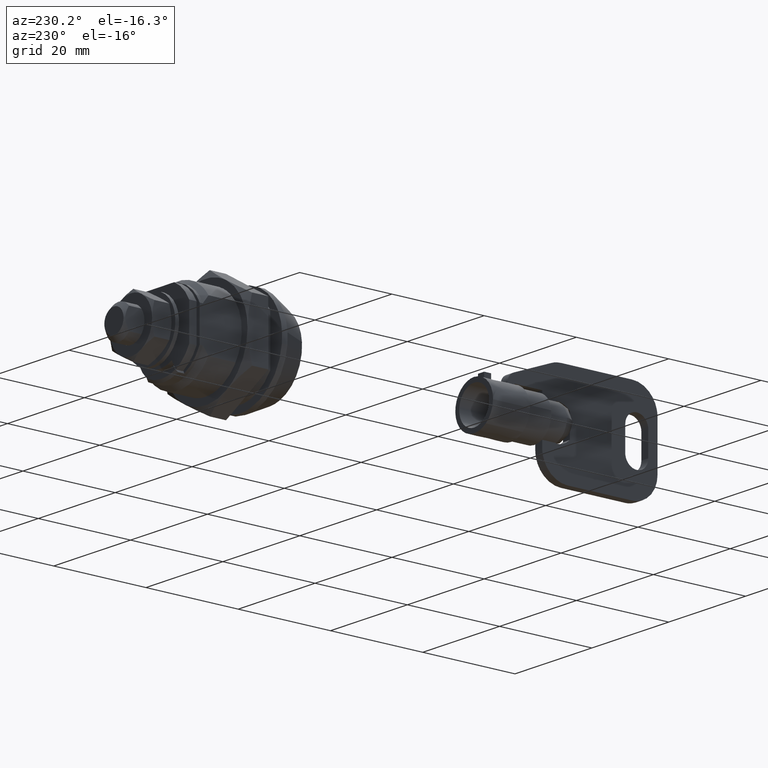
[diagram: clean part render]
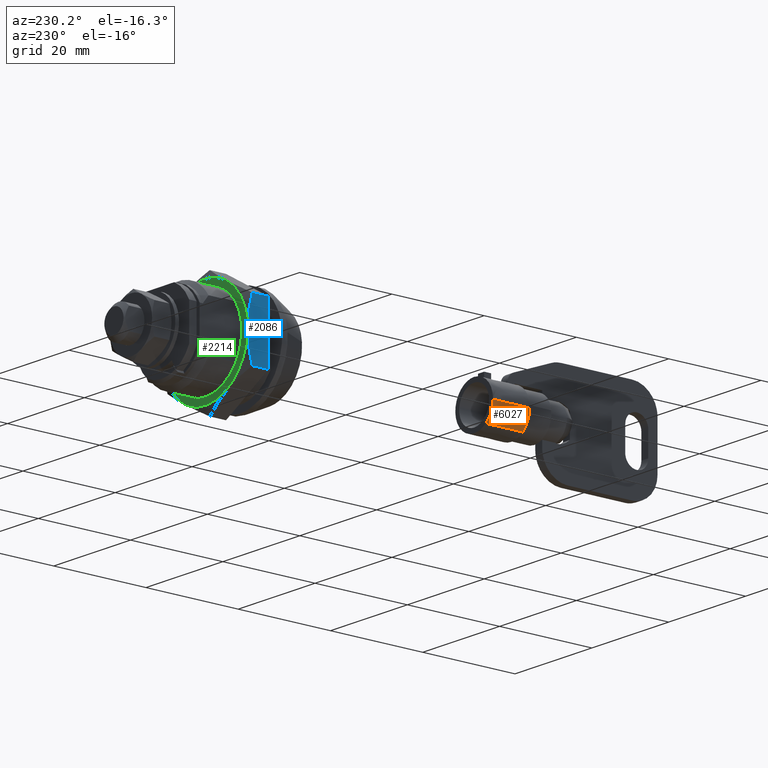
[diagram: same view with three faces highlighted in distinct colors, each labeled with its STEP entity id]
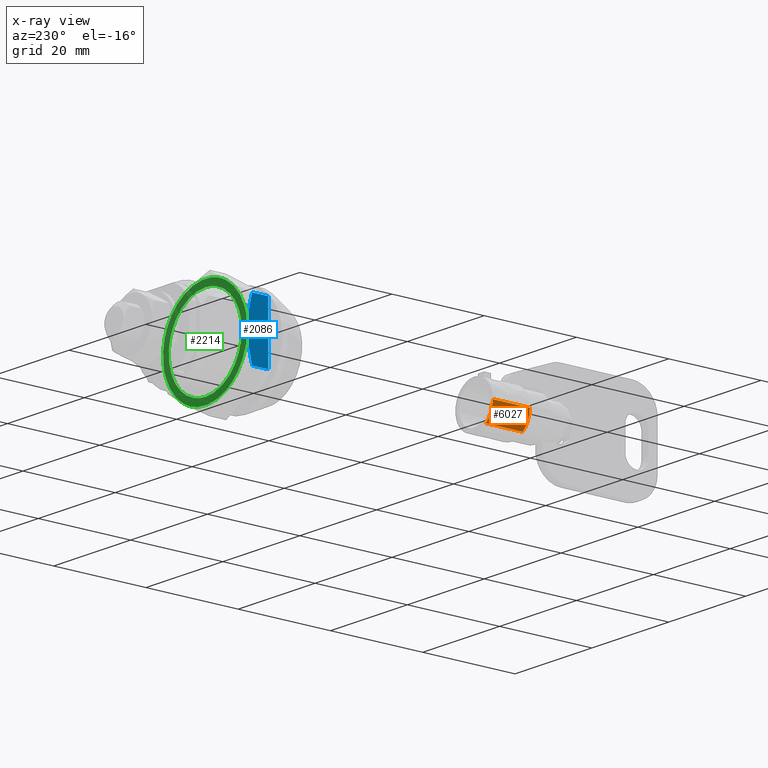
[diagram: x-ray of the same camera — body ghosted, the three highlighted faces saturated]
A machine part, auxiliary view with three faces highlighted in distinct colors.
The next image is the same camera in x-ray (body ghosted, the three faces saturated) — at least one of them is partly hidden behind the body in this view.
Their STEP definitions:

[orange] entity #6027 — the highlighted face is a freeform B-spline surface patch.
#5802=CARTESIAN_POINT('',(-44.490192999999728,3.031880904368626,-3.849376336721885));
#5803=VERTEX_POINT('',#5802);
#5836=CARTESIAN_POINT('',(-44.490192999999962,4.899123386318836,-0.092682499015972));
#5837=VERTEX_POINT('',#5836);
#5853=CARTESIAN_POINT('',(-52.490193000000012,4.899123160617044,-0.092694427897792));
#5854=VERTEX_POINT('',#5853);
#5855=CARTESIAN_POINT('',(-44.490192999999962,4.899123386318836,-0.092682499015972));
#5856=CARTESIAN_POINT('',(-52.490193000000012,4.899123160617044,-0.092694427897792));
#5857=QUASI_UNIFORM_CURVE('',1,(#5855,#5856),.UNSPECIFIED.,.F.,.U.);
#5858=EDGE_CURVE('',#5837,#5854,#5857,.T.);
#5904=CARTESIAN_POINT('',(-52.490193000000012,3.031879876965549,-3.849377145932925));
#5905=VERTEX_POINT('',#5904);
#5923=CARTESIAN_POINT('',(-44.490192999999728,3.031880904368626,-3.849376336721885));
#5924=CARTESIAN_POINT('',(-52.490193000000012,3.031879876965549,-3.849377145932925));
#5925=QUASI_UNIFORM_CURVE('',1,(#5923,#5924),.UNSPECIFIED.,.F.,.U.);
#5926=EDGE_CURVE('',#5803,#5905,#5925,.T.);
#5977=CARTESIAN_POINT('',(-44.290192999999945,4.899489789674055,-0.073314708269359));
#5978=CARTESIAN_POINT('',(-44.290192999999952,4.899306738117570,-0.082990668359086));
#5979=CARTESIAN_POINT('',(-44.290192999999952,4.855222328792115,-2.413257580056674));
#5980=CARTESIAN_POINT('',(-44.290192999999938,3.022975690842278,-3.856390351766449));
#5981=CARTESIAN_POINT('',(-44.290192999999945,3.014069983754067,-3.863404755552515));
#5982=CARTESIAN_POINT('',(-52.695192999999996,4.899489789674055,-0.073314708269359));
#5983=CARTESIAN_POINT('',(-52.695193000000003,4.899306738117570,-0.082990668359086));
#5984=CARTESIAN_POINT('',(-52.695193000000010,4.855222328792115,-2.413257580056674));
#5985=CARTESIAN_POINT('',(-52.695193000000003,3.022975690842278,-3.856390351766449));
#5986=CARTESIAN_POINT('',(-52.695193000000010,3.014069983754067,-3.863404755552515));
#5994=(BOUNDED_SURFACE()B_SPLINE_SURFACE(2,1,((#5977,#5982),(#5978,#5983),(#5979,#5984),(#5980,#5985),(#5981,#5986)),.UNSPECIFIED.,.F.,.F.,.U.)B_SPLINE_SURFACE_WITH_KNOTS((3,1,1,3),(2,2),(0.0,0.022670821786099,4.556830742366655,4.579506107401123),(0.0,8.405000000000070),.UNSPECIFIED.)GEOMETRIC_REPRESENTATION_ITEM()RATIONAL_B_SPLINE_SURFACE(((1.001640203630280,1.001640203630280),(1.000820101815140,1.000820101815140),(0.835979797464467,0.835979797464467),(0.855760653708424,0.855760653708424),(0.855859085648117,0.855859085648117)))REPRESENTATION_ITEM('')SURFACE());
#5995=CARTESIAN_POINT('',(-44.490192999999962,4.899123386318836,-0.092682499015972));
#5996=CARTESIAN_POINT('',(-44.490192999999955,4.855222291294791,-2.413259561018690));
#5997=CARTESIAN_POINT('',(-44.490192999999728,3.031880904368626,-3.849376336721885));
#6005=(BOUNDED_CURVE()B_SPLINE_CURVE(2,(#5995,#5996,#5997),.UNSPECIFIED.,.F.,.U.)B_SPLINE_CURVE_WITH_KNOTS((3,3),(0.253330944450832,0.392862775341363),.UNSPECIFIED.)CURVE()GEOMETRIC_REPRESENTATION_ITEM()RATIONAL_B_SPLINE_CURVE((0.992299102262812,0.833183515394160,0.856543982595250))REPRESENTATION_ITEM(''));
#6006=EDGE_CURVE('',#5837,#5803,#6005,.T.);
#6007=ORIENTED_EDGE('',*,*,#6006,.T.);
#6008=ORIENTED_EDGE('',*,*,#5926,.T.);
#6009=CARTESIAN_POINT('',(-52.490193000000012,4.899123160617044,-0.092694427897792));
#6010=CARTESIAN_POINT('',(-52.490192999999998,4.895717763305879,-0.272677856112229));
#6011=CARTESIAN_POINT('',(-52.490192999999998,4.879114949170234,-0.451926224934502));
#6012=CARTESIAN_POINT('',(-52.490192999999984,4.685030993501974,-2.547307898419673));
#6013=CARTESIAN_POINT('',(-52.490193000000012,3.031879876965549,-3.849377145932925));
#6021=(BOUNDED_CURVE()B_SPLINE_CURVE(2,(#6009,#6010,#6011,#6012,#6013),.UNSPECIFIED.,.F.,.U.)B_SPLINE_CURVE_WITH_KNOTS((3,2,3),(0.236558628282082,0.250000000000000,0.386631156131349),.UNSPECIFIED.)CURVE()GEOMETRIC_REPRESENTATION_ITEM()RATIONAL_B_SPLINE_CURVE((0.973442957146939,0.985966986785728,1.0,0.857354825109355,0.870627851513649))REPRESENTATION_ITEM(''));
#6022=EDGE_CURVE('',#5854,#5905,#6021,.T.);
#6023=ORIENTED_EDGE('',*,*,#6022,.F.);
#6024=ORIENTED_EDGE('',*,*,#5858,.F.);
#6025=EDGE_LOOP('',(#6007,#6008,#6023,#6024));
#6026=FACE_OUTER_BOUND('',#6025,.T.);
#6027=ADVANCED_FACE('',(#6026),#5994,.T.);

[blue] entity #2086 — the highlighted face is a freeform B-spline surface patch.
#1753=CARTESIAN_POINT('',(14.817523160168721,10.999996153432580,6.350857779185181));
#1754=VERTEX_POINT('',#1753);
#1768=CARTESIAN_POINT('',(15.800003000000100,11.0,0.0));
#1769=VERTEX_POINT('',#1768);
#1783=CARTESIAN_POINT('',(14.817523160168721,10.999996153432580,6.350857779185181));
#1784=CARTESIAN_POINT('',(15.113874832963189,10.999996787801960,5.324264894242234));
#1785=CARTESIAN_POINT('',(15.360691044646980,10.999997425601499,4.284209950723549));
#1786=CARTESIAN_POINT('',(15.575911920846711,10.999998229311601,2.958785661351487));
#1787=CARTESIAN_POINT('',(15.633452607148490,10.999998470911120,2.559249061069617));
#1788=CARTESIAN_POINT('',(15.679550248279041,10.999998713303039,2.156602629145398));
#1789=CARTESIAN_POINT('',(15.707643862317649,10.999998875080340,1.887454715712000));
#1790=CARTESIAN_POINT('',(15.720383532482369,10.999998956152121,1.752368935644440));
#1791=CARTESIAN_POINT('',(15.777091216504781,10.999999360746120,1.077151741925466));
#1792=CARTESIAN_POINT('',(15.799949071151140,10.999999681358100,0.538674497060350));
#1793=CARTESIAN_POINT('',(15.800002968709270,10.999999999244411,0.001277365672401));
#1794=CARTESIAN_POINT('',(15.800003000490999,10.999999999622210,0.000638681619963));
#1795=CARTESIAN_POINT('',(15.800003000000100,11.0,0.0));
#1796=B_SPLINE_CURVE_WITH_KNOTS('',3,(#1783,#1784,#1785,#1786,#1787,#1788,#1789,#1790,#1791,#1792,#1793,#1794,#1795),.UNSPECIFIED.,.F.,.U.,(4,2,1,2,2,2,4),(0.499851263056241,0.749851263056241,0.812351263056241,0.843601263056241,0.874851263056241,0.999851263056241,1.0),.UNSPECIFIED.);
#1797=EDGE_CURVE('',#1754,#1769,#1796,.T.);
#1816=CARTESIAN_POINT('',(14.817523160168721,11.000006684522100,-6.350839538793029));
#1817=VERTEX_POINT('',#1816);
#1818=CARTESIAN_POINT('',(15.800003000000100,11.0,0.0));
#1819=CARTESIAN_POINT('',(15.800002479859710,11.000000551095010,-0.536115558767677));
#1820=CARTESIAN_POINT('',(15.777262374012670,11.000001104044291,-1.070517174581867));
#1821=CARTESIAN_POINT('',(15.688480136834359,11.000002214130410,-2.136695299233254));
#1822=CARTESIAN_POINT('',(15.622418568846131,11.000002771268830,-2.668470343078009));
#1823=CARTESIAN_POINT('',(15.494177700114509,11.000003609353360,-3.463935907741798));
#1824=CARTESIAN_POINT('',(15.446586614998010,11.000003889109870,-3.728725981107665));
#1825=CARTESIAN_POINT('',(15.342388636294091,11.000004449358091,-4.257626582415925));
#1826=CARTESIAN_POINT('',(15.285757265390890,11.000004729967310,-4.521847641896962));
#1827=CARTESIAN_POINT('',(15.103564458138759,11.000005572072840,-5.312878537788781));
#1828=CARTESIAN_POINT('',(14.966654906536240,11.000006129765151,-5.834232214433349));
#1829=CARTESIAN_POINT('',(14.817523160168721,11.000006684522100,-6.350839538793029));
#1830=B_SPLINE_CURVE_WITH_KNOTS('',3,(#1818,#1819,#1820,#1821,#1822,#1823,#1824,#1825,#1826,#1827,#1828,#1829),.UNSPECIFIED.,.F.,.U.,(4,2,2,2,2,4),(0.000000861975267,0.124852125000845,0.249852125000845,0.312352125000845,0.374852125000845,0.499851263025578),.UNSPECIFIED.);
#1831=EDGE_CURVE('',#1769,#1817,#1830,.T.);
#2049=CARTESIAN_POINT('',(11.300003000000000,11.0,6.350860000000099));
#2050=VERTEX_POINT('',#2049);
#2051=CARTESIAN_POINT('',(14.817523160168721,10.999996153432580,6.350857779185181));
#2052=CARTESIAN_POINT('',(11.300003000000000,11.0,6.350860000000099));
#2053=QUASI_UNIFORM_CURVE('',1,(#2051,#2052),.UNSPECIFIED.,.F.,.U.);
#2054=EDGE_CURVE('',#1754,#2050,#2053,.T.);
#2064=CARTESIAN_POINT('',(11.075228050964650,11.0,6.985309986578926));
#2065=CARTESIAN_POINT('',(11.075228050964650,11.0,-6.985289752495943));
#2066=CARTESIAN_POINT('',(16.024778109967990,11.0,6.985309986578926));
#2067=CARTESIAN_POINT('',(16.024778109967990,11.0,-6.985289752495943));
#2068=B_SPLINE_SURFACE_WITH_KNOTS('',1,1,((#2064,#2066),(#2065,#2067)),.UNSPECIFIED.,.F.,.F.,.U.,(2,2),(2,2),(0.0,13.970599739074871),(0.0,4.949550059003343),.UNSPECIFIED.);
#2069=ORIENTED_EDGE('',*,*,#2054,.F.);
#2070=ORIENTED_EDGE('',*,*,#1797,.T.);
#2071=ORIENTED_EDGE('',*,*,#1831,.T.);
#2072=CARTESIAN_POINT('',(11.300003000000000,11.0,-6.350835679463490));
#2073=VERTEX_POINT('',#2072);
#2074=CARTESIAN_POINT('',(14.817523160168721,11.000006684522100,-6.350839538793029));
#2075=CARTESIAN_POINT('',(11.300003000000000,11.0,-6.350835679463490));
#2076=QUASI_UNIFORM_CURVE('',1,(#2074,#2075),.UNSPECIFIED.,.F.,.U.);
#2077=EDGE_CURVE('',#1817,#2073,#2076,.T.);
#2078=ORIENTED_EDGE('',*,*,#2077,.T.);
#2079=CARTESIAN_POINT('',(11.300003000000000,11.0,-6.350835679463490));
#2080=CARTESIAN_POINT('',(11.300003000000000,11.0,6.350860000000099));
#2081=QUASI_UNIFORM_CURVE('',1,(#2079,#2080),.UNSPECIFIED.,.F.,.U.);
#2082=EDGE_CURVE('',#2073,#2050,#2081,.T.);
#2083=ORIENTED_EDGE('',*,*,#2082,.T.);
#2084=EDGE_LOOP('',(#2069,#2070,#2071,#2078,#2083));
#2085=FACE_OUTER_BOUND('',#2084,.T.);
#2086=ADVANCED_FACE('',(#2085),#2068,.F.);

[green] entity #2214 — the highlighted face is a freeform B-spline surface patch.
#1607=CARTESIAN_POINT('',(15.800003000000050,9.470714670457465,-0.745361409506649));
#1608=VERTEX_POINT('',#1607);
#1614=CARTESIAN_POINT('',(15.800003000000050,0.0,9.500000000000000));
#1615=VERTEX_POINT('',#1614);
#1616=CARTESIAN_POINT('',(15.800003000000050,9.470714670457465,-0.745361409506649));
#1617=CARTESIAN_POINT('',(15.800003000000052,9.500000000000000,-0.373256016665408));
#1618=CARTESIAN_POINT('',(15.800003000000050,9.500000000000000,0.0));
#1619=CARTESIAN_POINT('',(15.800003000000050,9.500000000000000,9.500000000000000));
#1620=CARTESIAN_POINT('',(15.800003000000050,0.0,9.500000000000000));
#1628=(BOUNDED_CURVE()B_SPLINE_CURVE(2,(#1616,#1617,#1618,#1619,#1620),.UNSPECIFIED.,.F.,.U.)B_SPLINE_CURVE_WITH_KNOTS((3,2,3),(0.736331300629432,0.750000000000000,1.0),.UNSPECIFIED.)CURVE()GEOMETRIC_REPRESENTATION_ITEM()RATIONAL_B_SPLINE_CURVE((0.969723356164856,0.983986122577444,1.0,0.707106781186548,1.0))REPRESENTATION_ITEM(''));
#1629=EDGE_CURVE('',#1608,#1615,#1628,.T.);
#1631=CARTESIAN_POINT('',(15.800003000000050,-9.470714670457465,0.745361409506646));
#1632=VERTEX_POINT('',#1631);
#1633=CARTESIAN_POINT('',(15.800003000000050,0.0,9.500000000000000));
#1634=CARTESIAN_POINT('',(15.800003000000050,-8.781709670581606,9.500000000000000));
#1635=CARTESIAN_POINT('',(15.800003000000048,-9.470714670457465,0.745361409506646));
#1643=(BOUNDED_CURVE()B_SPLINE_CURVE(2,(#1633,#1634,#1635),.UNSPECIFIED.,.F.,.U.)B_SPLINE_CURVE_WITH_KNOTS((3,3),(0.0,0.236331300629432),.UNSPECIFIED.)CURVE()GEOMETRIC_REPRESENTATION_ITEM()RATIONAL_B_SPLINE_CURVE((1.0,0.723120658609104,0.969723356164856))REPRESENTATION_ITEM(''));
#1644=EDGE_CURVE('',#1615,#1632,#1643,.T.);
#1690=CARTESIAN_POINT('',(15.800003000000050,0.0,-9.500000000000000));
#1691=VERTEX_POINT('',#1690);
#1692=CARTESIAN_POINT('',(15.800003000000046,-9.470714670457465,0.745361409506646));
#1693=CARTESIAN_POINT('',(15.800003000000050,-9.500000000000000,0.373256016665406));
#1694=CARTESIAN_POINT('',(15.800003000000050,-9.500000000000000,0.0));
#1695=CARTESIAN_POINT('',(15.800003000000050,-9.500000000000000,-9.500000000000000));
#1696=CARTESIAN_POINT('',(15.800003000000050,0.0,-9.500000000000000));
#1704=(BOUNDED_CURVE()B_SPLINE_CURVE(2,(#1692,#1693,#1694,#1695,#1696),.UNSPECIFIED.,.F.,.U.)B_SPLINE_CURVE_WITH_KNOTS((3,2,3),(0.236331300629432,0.250000000000000,0.500000000000000),.UNSPECIFIED.)CURVE()GEOMETRIC_REPRESENTATION_ITEM()RATIONAL_B_SPLINE_CURVE((0.969723356164856,0.983986122577444,1.0,0.707106781186548,1.0))REPRESENTATION_ITEM(''));
#1705=EDGE_CURVE('',#1632,#1691,#1704,.T.);
#1707=CARTESIAN_POINT('',(15.800003000000050,0.0,-9.500000000000000));
#1708=CARTESIAN_POINT('',(15.800003000000050,8.781709670581661,-9.500000000000000));
#1709=CARTESIAN_POINT('',(15.800003000000050,9.470714670457465,-0.745361409506649));
#1717=(BOUNDED_CURVE()B_SPLINE_CURVE(2,(#1707,#1708,#1709),.UNSPECIFIED.,.F.,.U.)B_SPLINE_CURVE_WITH_KNOTS((3,3),(0.500000000000000,0.736331300629433),.UNSPECIFIED.)CURVE()GEOMETRIC_REPRESENTATION_ITEM()RATIONAL_B_SPLINE_CURVE((1.0,0.723120658609102,0.969723356164858))REPRESENTATION_ITEM(''));
#1718=EDGE_CURVE('',#1691,#1608,#1717,.T.);
#1751=CARTESIAN_POINT('',(15.800003000000100,5.499994829120610,9.526282427035561));
#1752=VERTEX_POINT('',#1751);
#1768=CARTESIAN_POINT('',(15.800003000000100,11.0,0.0));
#1769=VERTEX_POINT('',#1768);
#1770=CARTESIAN_POINT('',(15.800003000000100,5.499994829120610,9.526282427035561));
#1771=CARTESIAN_POINT('',(15.800003000000098,11.0,6.350856941630693));
#1772=CARTESIAN_POINT('',(15.800003000000100,11.0,0.0));
#1780=(BOUNDED_CURVE()B_SPLINE_CURVE(2,(#1770,#1771,#1772),.UNSPECIFIED.,.F.,.U.)CURVE()GEOMETRIC_REPRESENTATION_ITEM()QUASI_UNIFORM_CURVE()RATIONAL_B_SPLINE_CURVE((1.0,0.866025268084037,1.0))REPRESENTATION_ITEM(''));
#1781=EDGE_CURVE('',#1752,#1769,#1780,.T.);
#1833=CARTESIAN_POINT('',(15.800003000000100,5.513151729109220,-9.518674173004349));
#1834=VERTEX_POINT('',#1833);
#1835=CARTESIAN_POINT('',(15.800003000000100,11.0,0.0));
#1836=CARTESIAN_POINT('',(15.800003000000107,10.999999999999998,-6.340728748859865));
#1837=CARTESIAN_POINT('',(15.800003000000100,5.513151729109217,-9.518674173004348));
#1845=(BOUNDED_CURVE()B_SPLINE_CURVE(2,(#1835,#1836,#1837),.UNSPECIFIED.,.F.,.U.)CURVE()GEOMETRIC_REPRESENTATION_ITEM()QUASI_UNIFORM_CURVE()RATIONAL_B_SPLINE_CURVE((1.0,0.866370478414749,1.0))REPRESENTATION_ITEM(''));
#1846=EDGE_CURVE('',#1769,#1834,#1845,.T.);
#1876=CARTESIAN_POINT('',(15.800003000000100,5.486851247642080,-9.533858787828180));
#1877=VERTEX_POINT('',#1876);
#1878=CARTESIAN_POINT('',(15.800003000000100,-5.500000050550921,-9.526279470814409));
#1879=VERTEX_POINT('',#1878);
#1880=CARTESIAN_POINT('',(15.800003000000100,5.486851247642076,-9.533858787828176));
#1881=CARTESIAN_POINT('',(15.800003000000101,-0.008758877429218,-12.696649001356283));
#1882=CARTESIAN_POINT('',(15.800003000000100,-5.500000050550921,-9.526279470814409));
#1890=(BOUNDED_CURVE()B_SPLINE_CURVE(2,(#1880,#1881,#1882),.UNSPECIFIED.,.F.,.U.)CURVE()GEOMETRIC_REPRESENTATION_ITEM()QUASI_UNIFORM_CURVE()RATIONAL_B_SPLINE_CURVE((1.0,0.866370125011569,1.0))REPRESENTATION_ITEM(''));
#1891=EDGE_CURVE('',#1877,#1879,#1890,.T.);
#1942=CARTESIAN_POINT('',(15.800003000000100,-5.500000050550921,-9.526279470814409));
#1943=CARTESIAN_POINT('',(15.800003000000096,-15.026276854234830,-4.026280901760840));
#1944=CARTESIAN_POINT('',(15.800003000000100,-9.526280927036149,5.499997427198243));
#1945=CARTESIAN_POINT('',(15.800003000000096,-4.026284999837469,15.026275756157318));
#1946=CARTESIAN_POINT('',(15.800003000000100,5.499994829120609,9.526282427035563));
#1954=(BOUNDED_CURVE()B_SPLINE_CURVE(2,(#1942,#1943,#1944,#1945,#1946),.UNSPECIFIED.,.F.,.U.)B_SPLINE_CURVE_WITH_KNOTS((3,2,3),(0.0,0.500000000000000,1.0),.UNSPECIFIED.)CURVE()GEOMETRIC_REPRESENTATION_ITEM()RATIONAL_B_SPLINE_CURVE((1.0,0.707106877610223,1.0,0.707106877610223,1.0))REPRESENTATION_ITEM(''));
#1955=EDGE_CURVE('',#1879,#1752,#1954,.T.);
#2094=CARTESIAN_POINT('',(15.800003000000100,5.513151729109220,-9.518674173004349));
#2095=CARTESIAN_POINT('',(15.800003000000100,5.486851247642080,-9.533858787828180));
#2096=QUASI_UNIFORM_CURVE('',1,(#2094,#2095),.UNSPECIFIED.,.F.,.U.);
#2097=EDGE_CURVE('',#1834,#1877,#2096,.T.);
#2196=CARTESIAN_POINT('',(15.800003000000100,-12.098899984276450,12.098899995825670));
#2197=CARTESIAN_POINT('',(15.800003000000100,12.098900548349670,12.098899995825670));
#2198=CARTESIAN_POINT('',(15.800003000000100,-12.098899984276450,-12.098897818757219));
#2199=CARTESIAN_POINT('',(15.800003000000100,12.098900548349670,-12.098897818757219));
#2200=B_SPLINE_SURFACE_WITH_KNOTS('',1,1,((#2196,#2198),(#2197,#2199)),.UNSPECIFIED.,.F.,.F.,.U.,(2,2),(2,2),(0.0,24.197800532626118),(0.0,24.197797814582891),.UNSPECIFIED.);
#2201=ORIENTED_EDGE('',*,*,#1781,.F.);
#2202=ORIENTED_EDGE('',*,*,#1955,.F.);
#2203=ORIENTED_EDGE('',*,*,#1891,.F.);
#2204=ORIENTED_EDGE('',*,*,#2097,.F.);
#2205=ORIENTED_EDGE('',*,*,#1846,.F.);
#2206=EDGE_LOOP('',(#2201,#2202,#2203,#2204,#2205));
#2207=FACE_OUTER_BOUND('',#2206,.T.);
#2208=ORIENTED_EDGE('',*,*,#1718,.F.);
#2209=ORIENTED_EDGE('',*,*,#1705,.F.);
#2210=ORIENTED_EDGE('',*,*,#1644,.F.);
#2211=ORIENTED_EDGE('',*,*,#1629,.F.);
#2212=EDGE_LOOP('',(#2208,#2209,#2210,#2211));
#2213=FACE_BOUND('',#2212,.T.);
#2214=ADVANCED_FACE('',(#2207,#2213),#2200,.F.);